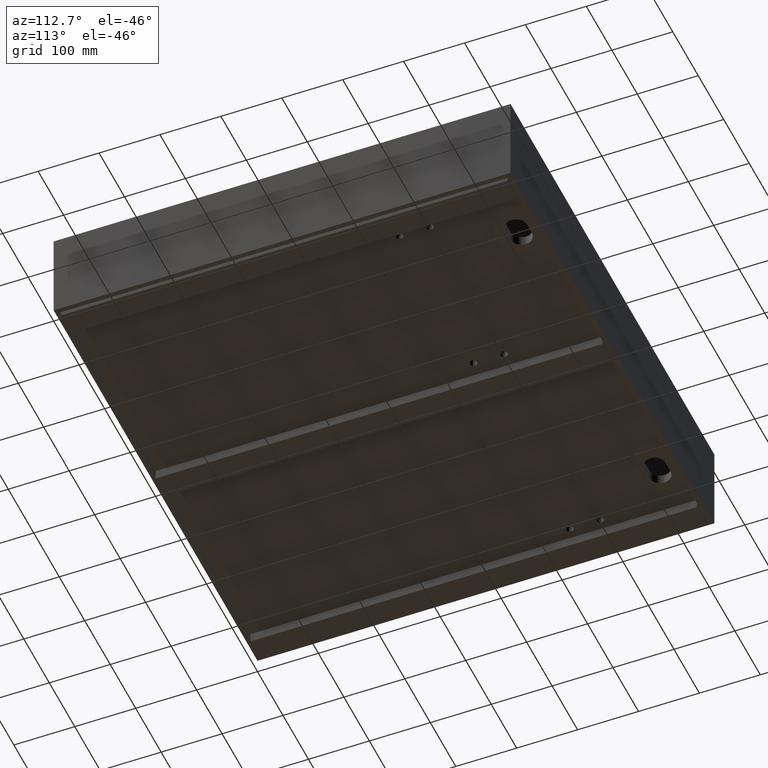
[diagram: clean part render]
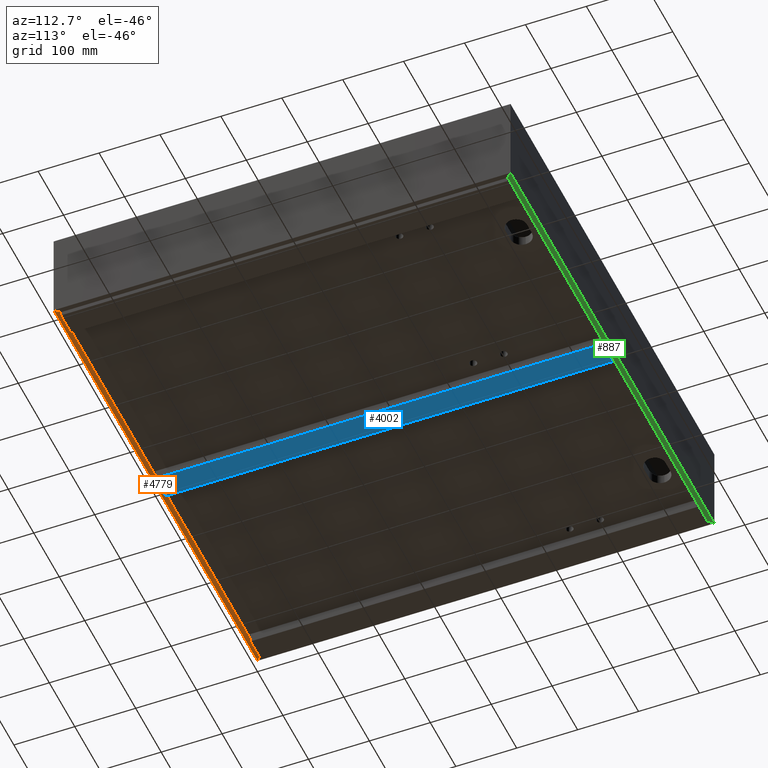
[diagram: same view with three faces highlighted in distinct colors, each labeled with its STEP entity id]
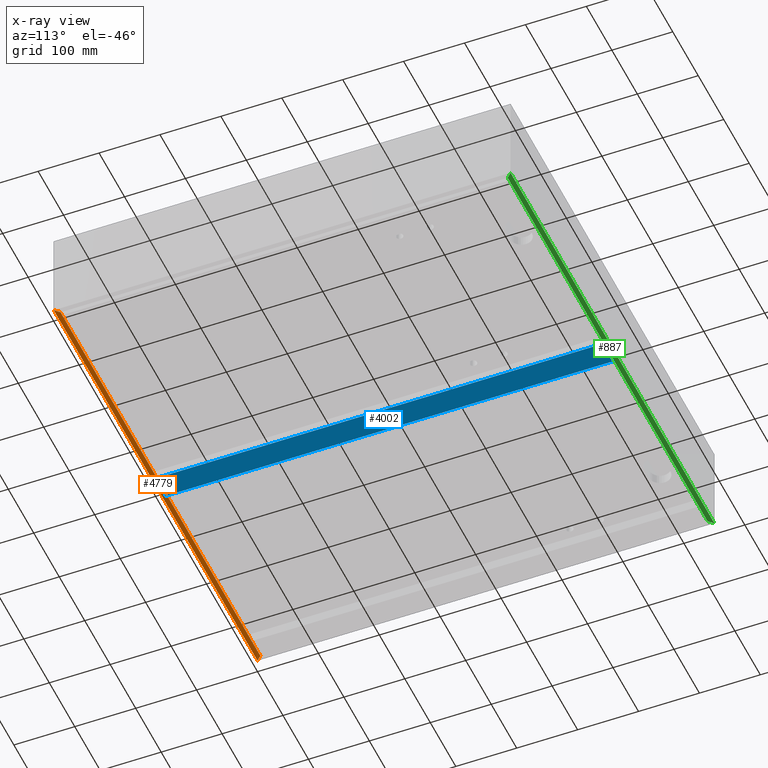
[diagram: x-ray of the same camera — body ghosted, the three highlighted faces saturated]
A machine part, auxiliary view with three faces highlighted in distinct colors.
The next image is the same camera in x-ray (body ghosted, the three faces saturated) — at least one of them is partly hidden behind the body in this view.
Their STEP definitions:

[orange] entity #4779 — the highlighted planar face has unit normal (-0, -0, 1).
#272 = CARTESIAN_POINT ( 'NONE',  ( 8.000000000000007105, 8.000000000000000000, -150.0000000000000284 ) ) ;
#408 = VECTOR ( 'NONE', #10145, 1000.000000000000000 ) ;
#1172 = EDGE_CURVE ( 'NONE', #7785, #10435, #6927, .T. ) ;
#1292 = LINE ( 'NONE', #4897, #6575 ) ;
#1475 = CARTESIAN_POINT ( 'NONE',  ( 0.0000000000000000000, 8.000000000000000000, -150.0000000000000284 ) ) ;
#1887 = ORIENTED_EDGE ( 'NONE', *, *, #5503, .T. ) ;
#1894 = EDGE_CURVE ( 'NONE', #7785, #11650, #1292, .T. ) ;
#2301 = ORIENTED_EDGE ( 'NONE', *, *, #1172, .T. ) ;
#2450 = DIRECTION ( 'NONE',  ( 0.7071067811865474617, -0.7071067811865476838, 4.336808689942016773E-19 ) ) ;
#2786 = CARTESIAN_POINT ( 'NONE',  ( 800.0000000000000000, -4.336808689942017736E-16, -150.0000000000000284 ) ) ;
#2927 = LINE ( 'NONE', #6525, #408 ) ;
#3582 = LINE ( 'NONE', #7173, #5652 ) ;
#3616 = EDGE_CURVE ( 'NONE', #10435, #10759, #3582, .T. ) ;
#4134 = VECTOR ( 'NONE', #2450, 1000.000000000000000 ) ;
#4226 = ORIENTED_EDGE ( 'NONE', *, *, #1894, .F. ) ;
#4779 = ADVANCED_FACE ( 'NONE', ( #5956 ), #9570, .F. ) ;
#4897 = CARTESIAN_POINT ( 'NONE',  ( 0.0000000000000000000, 8.000000000000000000, -150.0000000000000284 ) ) ;
#5078 = DIRECTION ( 'NONE',  ( -9.653723846241019713E-33, -1.189913333140524612E-64, 1.000000000000000000 ) ) ;
#5503 = EDGE_CURVE ( 'NONE', #10759, #11650, #2927, .T. ) ;
#5652 = VECTOR ( 'NONE', #10800, 1000.000000000000000 ) ;
#5956 = FACE_OUTER_BOUND ( 'NONE', #11141, .T. ) ;
#6077 = CARTESIAN_POINT ( 'NONE',  ( 0.0000000000000000000, -4.336808689942017736E-16, -150.0000000000000284 ) ) ;
#6525 = CARTESIAN_POINT ( 'NONE',  ( 8.000000000000007105, 8.000000000000000000, -150.0000000000000284 ) ) ;
#6575 = VECTOR ( 'NONE', #8495, 1000.000000000000000 ) ;
#6927 = LINE ( 'NONE', #10554, #4134 ) ;
#7173 = CARTESIAN_POINT ( 'NONE',  ( 0.0000000000000000000, -4.336808689942017736E-16, -150.0000000000000284 ) ) ;
#7684 = ORIENTED_EDGE ( 'NONE', *, *, #3616, .T. ) ;
#7785 = VERTEX_POINT ( 'NONE', #9830 ) ;
#8495 = DIRECTION ( 'NONE',  ( -1.000000000000000000, -6.162975822039154730E-33, -9.653723846241019713E-33 ) ) ;
#8678 = DIRECTION ( 'NONE',  ( 1.000000000000000000, 6.162975822039154730E-33, 9.653723846241019713E-33 ) ) ;
#9570 = PLANE ( 'NONE',  #9832 ) ;
#9830 = CARTESIAN_POINT ( 'NONE',  ( 791.9999999999998863, 8.000000000000000000, -150.0000000000000284 ) ) ;
#9832 = AXIS2_PLACEMENT_3D ( 'NONE', #1475, #5078, #8678 ) ;
#10145 = DIRECTION ( 'NONE',  ( 0.7071067811865474617, 0.7071067811865476838, 4.336808689942016773E-19 ) ) ;
#10435 = VERTEX_POINT ( 'NONE', #2786 ) ;
#10554 = CARTESIAN_POINT ( 'NONE',  ( 791.9999999999998863, 8.000000000000000000, -150.0000000000000284 ) ) ;
#10759 = VERTEX_POINT ( 'NONE', #6077 ) ;
#10800 = DIRECTION ( 'NONE',  ( -1.000000000000000000, -6.162975822039154730E-33, -9.653723846241019713E-33 ) ) ;
#11141 = EDGE_LOOP ( 'NONE', ( #4226, #2301, #7684, #1887 ) ) ;
#11650 = VERTEX_POINT ( 'NONE', #272 ) ;

[blue] entity #4002 — the highlighted planar face has unit normal (0, 0, -1).
#487 = EDGE_CURVE ( 'NONE', #8210, #6831, #8806, .T. ) ;
#527 = VECTOR ( 'NONE', #10135, 1000.000000000000000 ) ;
#612 = CARTESIAN_POINT ( 'NONE',  ( 419.9999999999998863, 8.499999999999952038, -157.0000000000003126 ) ) ;
#714 = CARTESIAN_POINT ( 'NONE',  ( 420.0000000000000000, 741.4999000000001388, -157.0000000000003126 ) ) ;
#951 = AXIS2_PLACEMENT_3D ( 'NONE', #2545, #6143, #9758 ) ;
#1294 = VECTOR ( 'NONE', #4324, 1000.000000000000000 ) ;
#1957 = ORIENTED_EDGE ( 'NONE', *, *, #3999, .T. ) ;
#2080 = LINE ( 'NONE', #5691, #5282 ) ;
#2545 = CARTESIAN_POINT ( 'NONE',  ( 0.0000000000000000000, 0.0000000000000000000, -157.0000000000003126 ) ) ;
#2645 = EDGE_CURVE ( 'NONE', #6831, #10538, #2923, .T. ) ;
#2923 = LINE ( 'NONE', #6520, #527 ) ;
#2955 = CARTESIAN_POINT ( 'NONE',  ( 380.0000000000000000, 8.499999999999952038, -157.0000000000003126 ) ) ;
#3431 = DIRECTION ( 'NONE',  ( 1.000000000000000000, -1.093085744738335998E-35, 0.0000000000000000000 ) ) ;
#3840 = EDGE_CURVE ( 'NONE', #10538, #3875, #2080, .T. ) ;
#3875 = VERTEX_POINT ( 'NONE', #4973 ) ;
#3956 = CARTESIAN_POINT ( 'NONE',  ( 420.0000000000000000, 741.4999000000001388, -157.0000000000003126 ) ) ;
#3999 = EDGE_CURVE ( 'NONE', #3875, #8210, #7917, .T. ) ;
#4002 = ADVANCED_FACE ( 'NONE', ( #7024 ), #10653, .T. ) ;
#4106 = ORIENTED_EDGE ( 'NONE', *, *, #2645, .T. ) ;
#4324 = DIRECTION ( 'NONE',  ( -1.514629162466674743E-16, -1.000000000000000000, -4.814824860968089633E-35 ) ) ;
#4973 = CARTESIAN_POINT ( 'NONE',  ( 380.0000000000000568, 741.4999000000001388, -157.0000000000003126 ) ) ;
#5282 = VECTOR ( 'NONE', #9289, 1000.000000000000000 ) ;
#5580 = EDGE_LOOP ( 'NONE', ( #5668, #4106, #5663, #1957 ) ) ;
#5663 = ORIENTED_EDGE ( 'NONE', *, *, #3840, .T. ) ;
#5668 = ORIENTED_EDGE ( 'NONE', *, *, #487, .T. ) ;
#5691 = CARTESIAN_POINT ( 'NONE',  ( 380.0000000000000568, 741.4999000000001388, -157.0000000000003126 ) ) ;
#6036 = VECTOR ( 'NONE', #3431, 1000.000000000000000 ) ;
#6143 = DIRECTION ( 'NONE',  ( 0.0000000000000000000, 0.0000000000000000000, -1.000000000000000000 ) ) ;
#6520 = CARTESIAN_POINT ( 'NONE',  ( 419.9999999999998863, 8.499999999999952038, -157.0000000000003126 ) ) ;
#6831 = VERTEX_POINT ( 'NONE', #612 ) ;
#7024 = FACE_OUTER_BOUND ( 'NONE', #5580, .T. ) ;
#7917 = LINE ( 'NONE', #11531, #6036 ) ;
#8210 = VERTEX_POINT ( 'NONE', #3956 ) ;
#8806 = LINE ( 'NONE', #714, #1294 ) ;
#9289 = DIRECTION ( 'NONE',  ( 7.573145812333373714E-17, 1.000000000000000000, 0.0000000000000000000 ) ) ;
#9758 = DIRECTION ( 'NONE',  ( -1.000000000000000000, 1.093085744738335998E-35, 0.0000000000000000000 ) ) ;
#10135 = DIRECTION ( 'NONE',  ( -1.000000000000000000, 1.301042606982609512E-16, 0.0000000000000000000 ) ) ;
#10538 = VERTEX_POINT ( 'NONE', #2955 ) ;
#10653 = PLANE ( 'NONE',  #951 ) ;
#11531 = CARTESIAN_POINT ( 'NONE',  ( 420.0000000000000000, 741.4999000000001388, -157.0000000000003126 ) ) ;

[green] entity #887 — the highlighted planar face has unit normal (0, 0, -1).
#261 = ORIENTED_EDGE ( 'NONE', *, *, #9537, .T. ) ;
#299 = LINE ( 'NONE', #3911, #764 ) ;
#509 = VECTOR ( 'NONE', #6935, 1000.000000000000000 ) ;
#587 = LINE ( 'NONE', #4195, #3968 ) ;
#636 = LINE ( 'NONE', #4248, #4624 ) ;
#764 = VECTOR ( 'NONE', #7489, 1000.000000000000000 ) ;
#882 = EDGE_CURVE ( 'NONE', #8503, #7627, #587, .T. ) ;
#887 = ADVANCED_FACE ( 'NONE', ( #6016 ), #9630, .T. ) ;
#1150 = CARTESIAN_POINT ( 'NONE',  ( 792.0000000000000000, 741.9999000000000251, -150.0000000000000284 ) ) ;
#1277 = CARTESIAN_POINT ( 'NONE',  ( 0.0000000000000000000, 749.9999000000000251, -150.0000000000000284 ) ) ;
#1432 = ORIENTED_EDGE ( 'NONE', *, *, #882, .T. ) ;
#1531 = CARTESIAN_POINT ( 'NONE',  ( 0.0000000000000000000, 741.9999000000000251, -150.0000000000000284 ) ) ;
#1626 = EDGE_LOOP ( 'NONE', ( #6522, #261, #1432, #5823 ) ) ;
#1890 = CARTESIAN_POINT ( 'NONE',  ( 800.0000000000000000, 749.9999000000000251, -150.0000000000000284 ) ) ;
#3344 = CARTESIAN_POINT ( 'NONE',  ( 0.0000000000000000000, 749.9999000000000251, -150.0000000000000284 ) ) ;
#3484 = EDGE_CURVE ( 'NONE', #9295, #9818, #11443, .T. ) ;
#3911 = CARTESIAN_POINT ( 'NONE',  ( 4.000000000000003553, 745.9999000000000251, -150.0000000000000284 ) ) ;
#3968 = VECTOR ( 'NONE', #7787, 1000.000000000000000 ) ;
#4195 = CARTESIAN_POINT ( 'NONE',  ( 0.0000000000000000000, 741.9999000000000251, -150.0000000000000284 ) ) ;
#4215 = EDGE_CURVE ( 'NONE', #7627, #9818, #299, .T. ) ;
#4248 = CARTESIAN_POINT ( 'NONE',  ( 396.0000000000000000, 345.9998999999999683, -150.0000000000000000 ) ) ;
#4624 = VECTOR ( 'NONE', #7836, 1000.000000000000000 ) ;
#5133 = DIRECTION ( 'NONE',  ( 2.174194351280902975E-33, 4.187346006049471799E-67, -1.000000000000000000 ) ) ;
#5472 = CARTESIAN_POINT ( 'NONE',  ( 8.000000000000007105, 741.9999000000000251, -150.0000000000000284 ) ) ;
#5474 = AXIS2_PLACEMENT_3D ( 'NONE', #1531, #5133, #8731 ) ;
#5823 = ORIENTED_EDGE ( 'NONE', *, *, #4215, .T. ) ;
#6016 = FACE_OUTER_BOUND ( 'NONE', #1626, .T. ) ;
#6522 = ORIENTED_EDGE ( 'NONE', *, *, #3484, .F. ) ;
#6935 = DIRECTION ( 'NONE',  ( -1.000000000000000000, -9.629649721936179265E-35, -2.174194351280902975E-33 ) ) ;
#7489 = DIRECTION ( 'NONE',  ( -0.7071067811865474617, 0.7071067811865476838, 0.0000000000000000000 ) ) ;
#7627 = VERTEX_POINT ( 'NONE', #5472 ) ;
#7787 = DIRECTION ( 'NONE',  ( -1.000000000000000000, -9.629649721936179265E-35, -2.174194351280902975E-33 ) ) ;
#7836 = DIRECTION ( 'NONE',  ( -0.7071067811865474617, -0.7071067811865476838, 0.0000000000000000000 ) ) ;
#8503 = VERTEX_POINT ( 'NONE', #1150 ) ;
#8731 = DIRECTION ( 'NONE',  ( -1.000000000000000000, -9.629649721936179265E-35, -2.174194351280902975E-33 ) ) ;
#9295 = VERTEX_POINT ( 'NONE', #1890 ) ;
#9537 = EDGE_CURVE ( 'NONE', #9295, #8503, #636, .T. ) ;
#9630 = PLANE ( 'NONE',  #5474 ) ;
#9818 = VERTEX_POINT ( 'NONE', #1277 ) ;
#11443 = LINE ( 'NONE', #3344, #509 ) ;